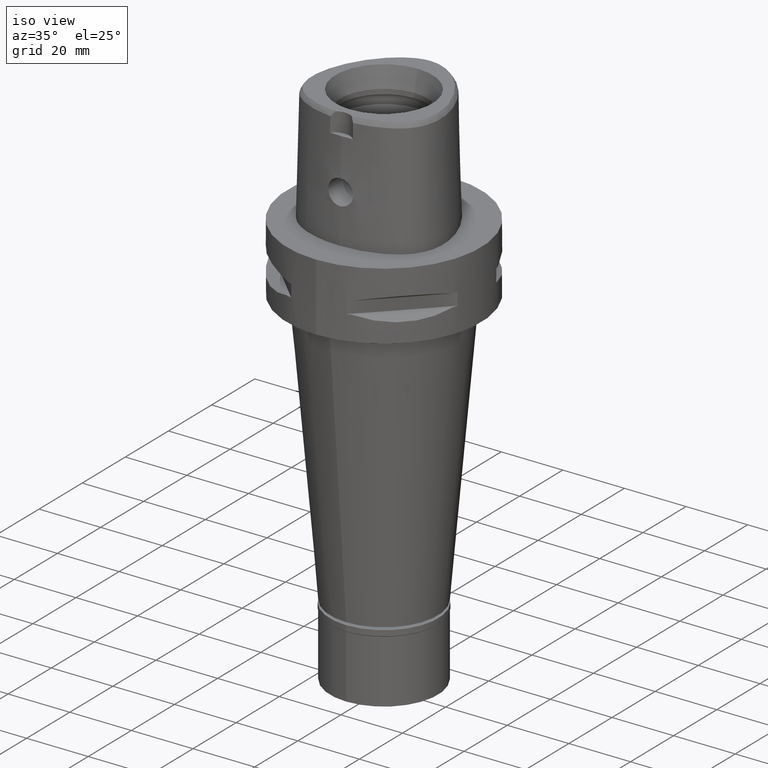
[diagram: clean part render]
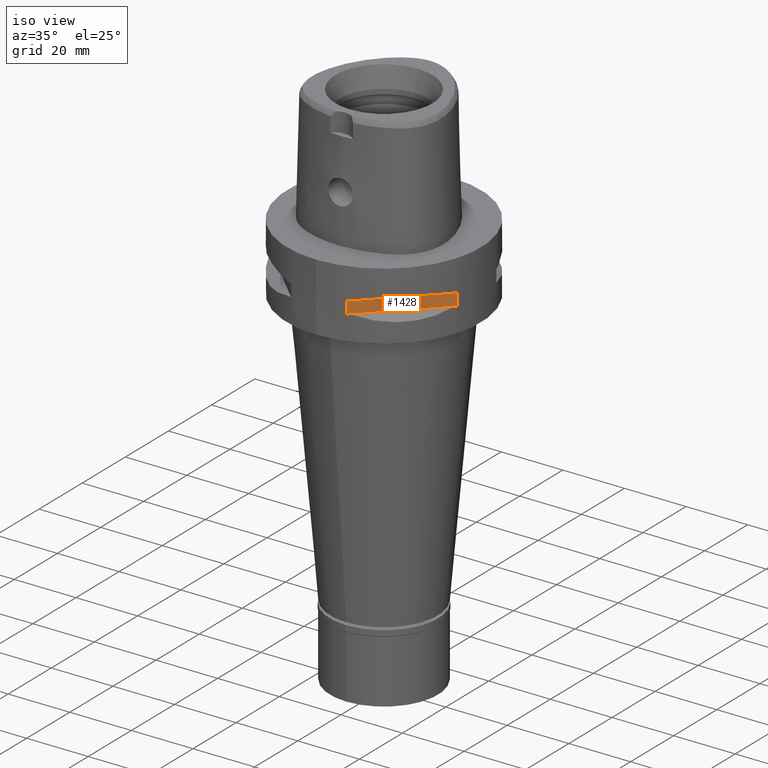
[diagram: same view with one face highlighted and labeled with its STEP entity id]
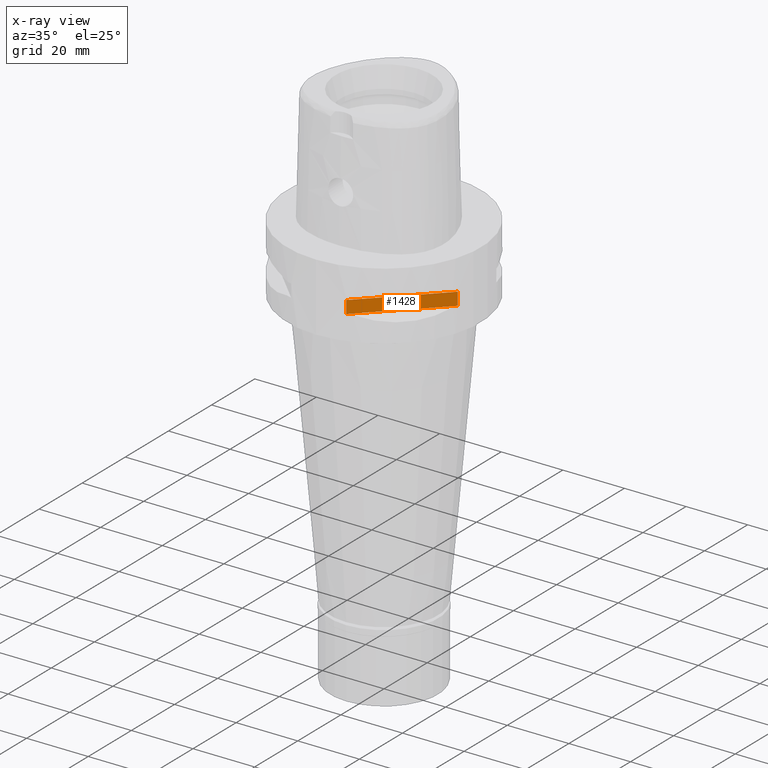
[diagram: x-ray of the same camera — body ghosted, the highlighted face saturated]
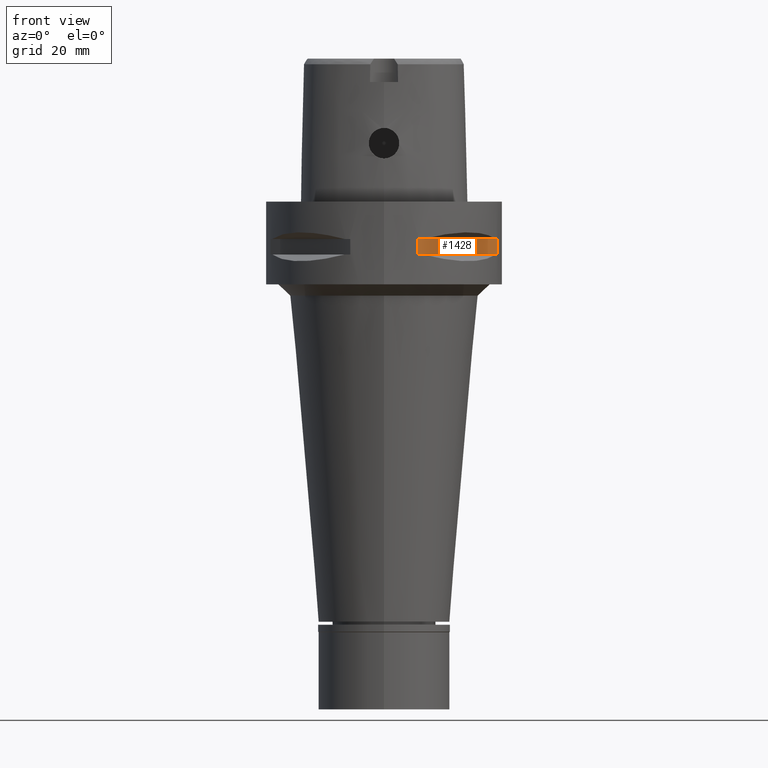
[diagram: same view with one face highlighted and labeled with its STEP entity id]
A machine part, iso view. The second image highlights one B-rep face of the part: STEP entity #1428.
The next image is the same camera in x-ray: the body ghosted, the highlighted face saturated — about 0% of this face is hidden behind the body in this view.
A second angle (front view) of the same face is appended — the face is thin or edge-on in the first view.
In plain terms, the highlighted planar face has unit normal (-0.7071, 0.7071, 0).
Its self-contained STEP definition (entity closure, byte-faithful):
#18 = ORIENTED_EDGE ( 'NONE', *, *, #1993, .T. ) ;
#59 = VECTOR ( 'NONE', #1257, 1000.000000000000000 ) ;
#304 = EDGE_CURVE ( 'NONE', #3712, #374, #786, .T. ) ;
#374 = VERTEX_POINT ( 'NONE', #4359 ) ;
#396 = AXIS2_PLACEMENT_3D ( 'NONE', #3343, #4907, #1413 ) ;
#567 = VECTOR ( 'NONE', #607, 1000.000000000000000 ) ;
#607 = DIRECTION ( 'NONE',  ( 0.0000000000000000000, 0.0000000000000000000, 1.000000000000000000 ) ) ;
#662 = EDGE_LOOP ( 'NONE', ( #3709, #3760, #18, #4210 ) ) ;
#786 = LINE ( 'NONE', #2345, #59 ) ;
#1257 = DIRECTION ( 'NONE',  ( 0.0000000000000000000, 0.0000000000000000000, -1.000000000000000000 ) ) ;
#1413 = DIRECTION ( 'NONE',  ( 0.0000000000000000000, 0.0000000000000000000, 1.000000000000000000 ) ) ;
#1428 = ADVANCED_FACE ( 'NONE', ( #2987 ), #1781, .F. ) ;
#1515 = CARTESIAN_POINT ( 'NONE',  ( 8.981198972017999438, -30.19251670572000279, -9.950000000000001066 ) ) ;
#1781 = PLANE ( 'NONE',  #396 ) ;
#1819 = CARTESIAN_POINT ( 'NONE',  ( 30.19251670572000279, -8.981198972017999438, -14.05000000000000071 ) ) ;
#1929 = CARTESIAN_POINT ( 'NONE',  ( 8.981198972017999438, -30.19251670572000279, -14.05000000000000071 ) ) ;
#1993 = EDGE_CURVE ( 'NONE', #374, #4163, #2815, .T. ) ;
#2345 = CARTESIAN_POINT ( 'NONE',  ( 8.981198972017999438, -30.19251670572000279, -9.950000000000001066 ) ) ;
#2397 = CARTESIAN_POINT ( 'NONE',  ( 30.19251670572000279, -8.981198972019999616, -14.05000000000000071 ) ) ;
#2404 = DIRECTION ( 'NONE',  ( 0.7071067811865474617, 0.7071067811865474617, 0.0000000000000000000 ) ) ;
#2815 = LINE ( 'NONE', #1929, #2855 ) ;
#2855 = VECTOR ( 'NONE', #2404, 1000.000000000000114 ) ;
#2951 = VECTOR ( 'NONE', #4925, 1000.000000000000114 ) ;
#2987 = FACE_OUTER_BOUND ( 'NONE', #662, .T. ) ;
#3151 = CARTESIAN_POINT ( 'NONE',  ( 8.981198972019999616, -30.19251670572000279, -9.950000000000001066 ) ) ;
#3343 = CARTESIAN_POINT ( 'NONE',  ( 33.72899346260000186, -5.444722215136000187, -9.950000000000001066 ) ) ;
#3604 = VERTEX_POINT ( 'NONE', #3713 ) ;
#3709 = ORIENTED_EDGE ( 'NONE', *, *, #5061, .F. ) ;
#3712 = VERTEX_POINT ( 'NONE', #3151 ) ;
#3713 = CARTESIAN_POINT ( 'NONE',  ( 30.19251670572000279, -8.981198972017999438, -9.950000000000001066 ) ) ;
#3760 = ORIENTED_EDGE ( 'NONE', *, *, #304, .T. ) ;
#4118 = LINE ( 'NONE', #1819, #567 ) ;
#4163 = VERTEX_POINT ( 'NONE', #2397 ) ;
#4210 = ORIENTED_EDGE ( 'NONE', *, *, #4490, .T. ) ;
#4359 = CARTESIAN_POINT ( 'NONE',  ( 8.981198972017999438, -30.19251670572000279, -14.05000000000000071 ) ) ;
#4490 = EDGE_CURVE ( 'NONE', #4163, #3604, #4118, .T. ) ;
#4907 = DIRECTION ( 'NONE',  ( -0.7071067811865475727, 0.7071067811865475727, 0.0000000000000000000 ) ) ;
#4925 = DIRECTION ( 'NONE',  ( 0.7071067811865474617, 0.7071067811865474617, 0.0000000000000000000 ) ) ;
#5023 = LINE ( 'NONE', #1515, #2951 ) ;
#5061 = EDGE_CURVE ( 'NONE', #3712, #3604, #5023, .T. ) ;